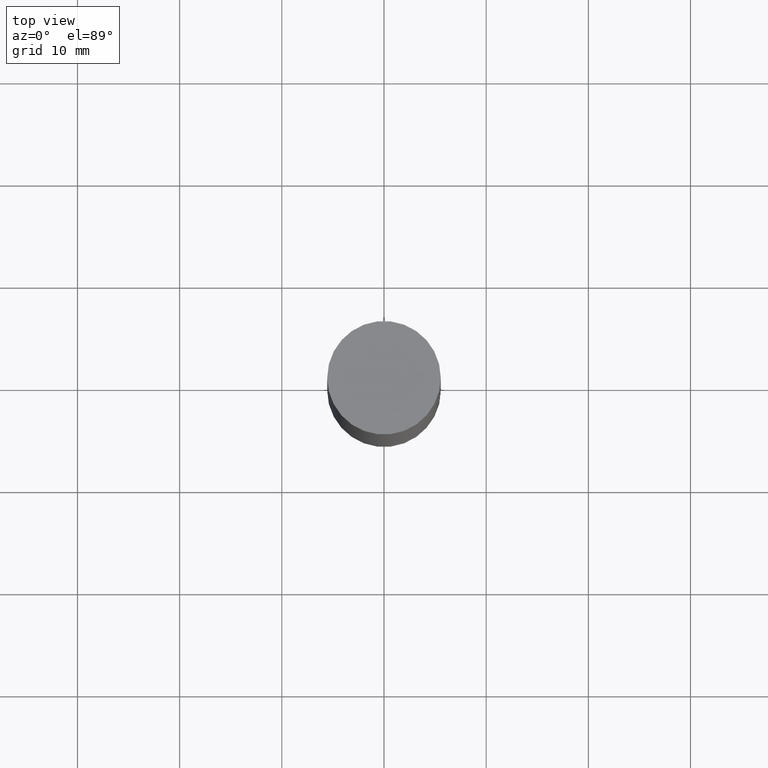
[diagram: clean part render]
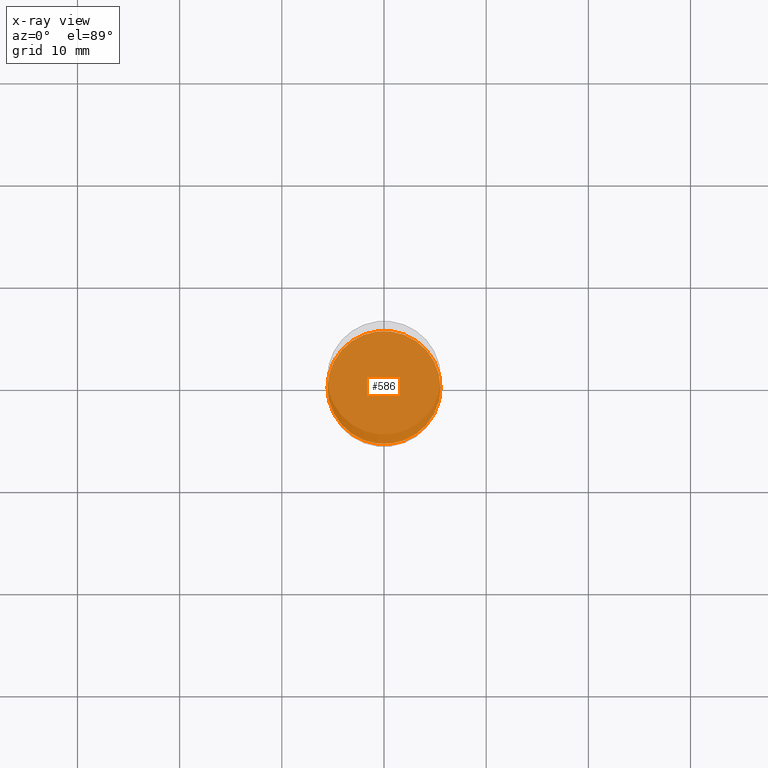
[diagram: x-ray — body ghosted, one internal face saturated and labeled with its STEP entity id]
A machine part, top view, then the same camera in x-ray: the body is ghosted and one INTERNAL B-rep face — a face not visible from any outside direction — is saturated and labeled: STEP entity #586.
In plain terms, the highlighted planar face has unit normal (-0, 0, 1).
Its self-contained STEP definition (entity closure, byte-faithful):
#3 = CIRCLE ( 'NONE', #115, 0.2177499999999999991 ) ;
#13 = CARTESIAN_POINT ( 'NONE',  ( 0.2177499999999999991, -9.159901292454986579E-15, -2.187999999999999723 ) ) ;
#35 = AXIS2_PLACEMENT_3D ( 'NONE', #444, #553, #400 ) ;
#40 = ORIENTED_EDGE ( 'NONE', *, *, #269, .F. ) ;
#73 = FACE_OUTER_BOUND ( 'NONE', #458, .T. ) ;
#115 = AXIS2_PLACEMENT_3D ( 'NONE', #320, #478, #532 ) ;
#117 = VERTEX_POINT ( 'NONE', #142 ) ;
#125 = DIRECTION ( 'NONE',  ( 1.000000000000000000, -6.982962677686266711E-15, 0.000000000000000000 ) ) ;
#142 = CARTESIAN_POINT ( 'NONE',  ( -0.2177499999999999991, -6.086855907922961200E-15, -2.187999999999999723 ) ) ;
#174 = DIRECTION ( 'NONE',  ( -2.445468806185136597E-29, 3.491481338843145583E-15, 1.000000000000000000 ) ) ;
#225 = PLANE ( 'NONE',  #35 ) ;
#236 = CARTESIAN_POINT ( 'NONE',  ( 5.350685747933077986E-29, -7.639361169388800962E-15, -2.187999999999999723 ) ) ;
#269 = EDGE_CURVE ( 'NONE', #377, #117, #3, .T. ) ;
#320 = CARTESIAN_POINT ( 'NONE',  ( 5.350685747933077986E-29, -7.639361169388800962E-15, -2.187999999999999723 ) ) ;
#340 = CIRCLE ( 'NONE', #641, 0.2177499999999999991 ) ;
#377 = VERTEX_POINT ( 'NONE', #13 ) ;
#400 = DIRECTION ( 'NONE',  ( 1.000000000000000000, -6.982962677686265922E-15, 4.876176775795935793E-29 ) ) ;
#444 = CARTESIAN_POINT ( 'NONE',  ( 5.350685747933077986E-29, -7.639361169388800962E-15, -2.187999999999999723 ) ) ;
#456 = ORIENTED_EDGE ( 'NONE', *, *, #578, .F. ) ;
#458 = EDGE_LOOP ( 'NONE', ( #40, #456 ) ) ;
#478 = DIRECTION ( 'NONE',  ( -2.445468806185136597E-29, 3.491481338843145583E-15, 1.000000000000000000 ) ) ;
#532 = DIRECTION ( 'NONE',  ( 1.000000000000000000, -6.982962677686266711E-15, 0.000000000000000000 ) ) ;
#553 = DIRECTION ( 'NONE',  ( -2.438088387897960049E-29, 3.491481338843145188E-15, 1.000000000000000000 ) ) ;
#578 = EDGE_CURVE ( 'NONE', #117, #377, #340, .T. ) ;
#586 = ADVANCED_FACE ( 'NONE', ( #73 ), #225, .F. ) ;
#641 = AXIS2_PLACEMENT_3D ( 'NONE', #236, #174, #125 ) ;